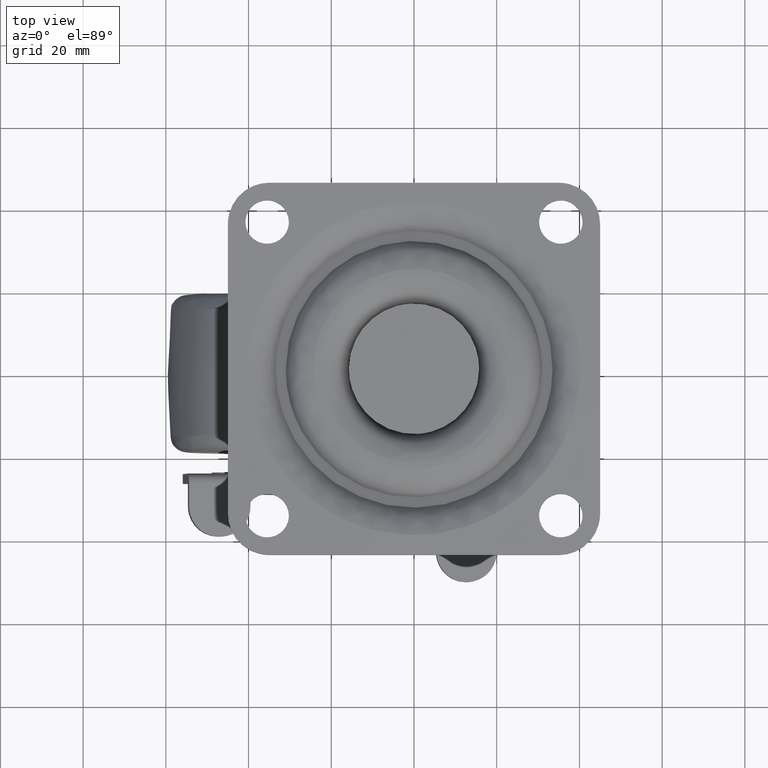
[diagram: clean part render]
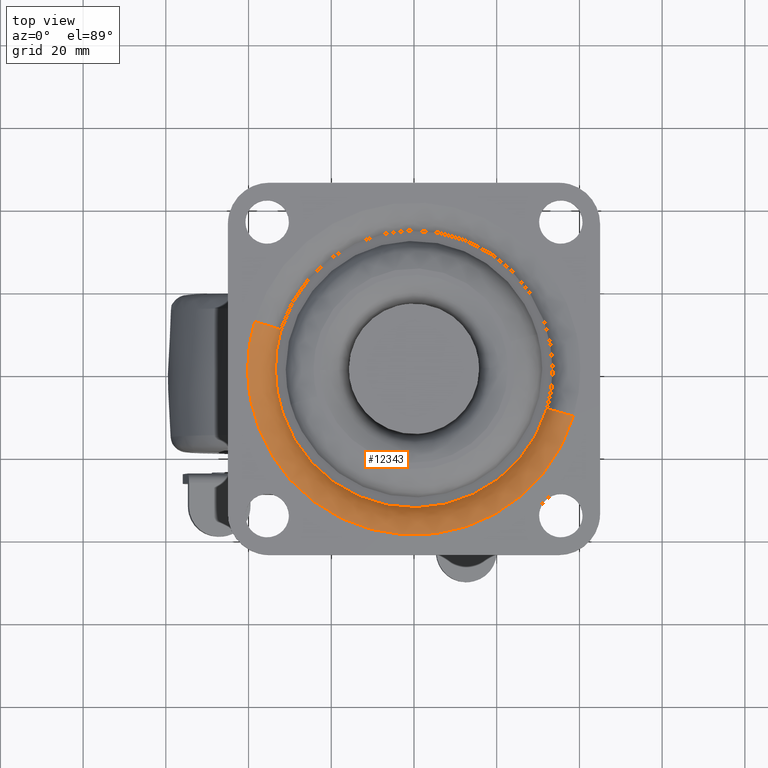
[diagram: same view with one face highlighted and labeled with its STEP entity id]
A machine part, top view. The second image highlights one B-rep face of the part: STEP entity #12343.
In plain terms, the highlighted face is a freeform B-spline surface patch.
Its self-contained STEP definition (entity closure, byte-faithful):
#11880=CARTESIAN_POINT('',(32.110479932456080,-9.548145292971970,-4.999999998579973));
#11881=VERTEX_POINT('',#11880);
#11882=CARTESIAN_POINT('',(-33.500000000000000,0.0,-5.000000000000101));
#11883=VERTEX_POINT('',#11882);
#11884=CARTESIAN_POINT('',(32.110479932456080,-9.548145292971970,-4.999999998579973));
#11885=CARTESIAN_POINT('',(31.738136267525910,-10.800460602766030,-4.999999998584002));
#11886=CARTESIAN_POINT('',(30.931519906835138,-13.027034921487269,-4.999999998594229));
#11887=CARTESIAN_POINT('',(29.049296237325159,-16.890546129142699,-4.999999998622218));
#11888=CARTESIAN_POINT('',(26.558639208610710,-20.633775356358932,-4.999999998663463));
#11889=CARTESIAN_POINT('',(23.025677028032590,-24.500537479490738,-4.999999998726418));
#11890=CARTESIAN_POINT('',(19.297196201058998,-27.533263028221491,-4.999999998796050));
#11891=CARTESIAN_POINT('',(15.489084467044441,-29.791032142913888,-4.999999998869815));
#11892=CARTESIAN_POINT('',(12.187463765312440,-31.258279482545721,-4.999999998935303));
#11893=CARTESIAN_POINT('',(9.176110124942019,-32.267878534932379,-4.999999998996048));
#11894=CARTESIAN_POINT('',(6.084401681359591,-32.996862499756539,-4.999999999059231));
#11895=CARTESIAN_POINT('',(2.627360893692044,-33.463111143424769,-4.999999999131167));
#11896=CARTESIAN_POINT('',(-1.110654880429590,-33.558161957603431,-4.999999999210047));
#11897=CARTESIAN_POINT('',(-4.648015448260884,-33.233253126538443,-4.999999999286053));
#11898=CARTESIAN_POINT('',(-8.009956655582371,-32.580160099555698,-4.999999999359324));
#11899=CARTESIAN_POINT('',(-11.476063063652390,-31.558753965133679,-4.999999999435936));
#11900=CARTESIAN_POINT('',(-15.313553452313039,-29.907452704330851,-4.999999999522373));
#11901=CARTESIAN_POINT('',(-18.896570850744720,-27.759206678929988,-4.999999999604943));
#11902=CARTESIAN_POINT('',(-22.391430595874350,-25.047632712233920,-4.999999999687385));
#11903=CARTESIAN_POINT('',(-25.814699615576650,-21.587330196626471,-4.999999999770615));
#11904=CARTESIAN_POINT('',(-29.024260168279071,-17.049985818575870,-4.999999999852643));
#11905=CARTESIAN_POINT('',(-31.284988578151040,-12.318006424858590,-4.999999999915155));
#11906=CARTESIAN_POINT('',(-32.438292429169337,-8.563592994347397,-4.999999999951185));
#11907=CARTESIAN_POINT('',(-33.266373886684363,-4.603754995420224,-4.999999999980947));
#11908=CARTESIAN_POINT('',(-33.500210266292882,-1.990854671788814,-4.999999999993965));
#11909=CARTESIAN_POINT('',(-33.500000000000000,0.0,-5.000000000000101));
#11910=B_SPLINE_CURVE_WITH_KNOTS('',3,(#11884,#11885,#11886,#11887,#11888,#11889,#11890,#11891,#11892,#11893,#11894,#11895,#11896,#11897,#11898,#11899,#11900,#11901,#11902,#11903,#11904,#11905,#11906,#11907,#11908,#11909),.UNSPECIFIED.,.F.,.U.,(4,1,1,1,1,1,1,1,1,1,1,1,1,1,1,1,1,1,1,1,1,1,1,4),(0.000000077171023,3.919491631097330,7.092419505507948,12.878339353669791,17.357780441215379,22.770438839011330,27.249847315327560,30.609424321378778,33.595727570752238,36.768671557499253,40.128219690512452,44.047612740551997,47.967180990772441,50.766766895164260,54.313022620331452,58.792434442157877,63.271873865488260,66.818104058857131,72.044106738784237,77.830056500636317,83.429317893992859,87.722149698707526,89.588577826166755,95.561088930692605),.UNSPECIFIED.);
#11911=EDGE_CURVE('',#11881,#11883,#11910,.T.);
#11928=CARTESIAN_POINT('',(-32.110479932456080,9.548145292971970,-4.999999998579973));
#11929=VERTEX_POINT('',#11928);
#11959=CARTESIAN_POINT('',(-33.500000000000000,0.0,-5.000000000000101));
#11960=CARTESIAN_POINT('',(-33.500000000202917,4.875179508605094,-4.999999999290038));
#11961=CARTESIAN_POINT('',(-32.110479932456080,9.548145292971970,-4.999999998579973));
#11969=(BOUNDED_CURVE()B_SPLINE_CURVE(2,(#11959,#11960,#11961),.UNSPECIFIED.,.F.,.U.)B_SPLINE_CURVE_WITH_KNOTS((3,3),(0.0,0.048526662065026),.UNSPECIFIED.)CURVE()GEOMETRIC_REPRESENTATION_ITEM()RATIONAL_B_SPLINE_CURVE((1.0,0.943147478998007,0.908365862589683))REPRESENTATION_ITEM(''));
#11970=EDGE_CURVE('',#11883,#11929,#11969,.T.);
#12241=CARTESIAN_POINT('',(32.008660816773030,-9.517869080473131,-5.398889023866007));
#12242=CARTESIAN_POINT('',(22.490791736299929,-41.526529897246164,-5.398889023866007));
#12243=CARTESIAN_POINT('',(-9.517869080473123,-32.008660816773030,-5.398889023866007));
#12244=CARTESIAN_POINT('',(-41.526529897246164,-22.490791736299929,-5.398889023866007));
#12245=CARTESIAN_POINT('',(-32.008660816773030,9.517869080473121,-5.398889023866007));
#12246=CARTESIAN_POINT('',(33.300328113546435,-9.901950135803498,0.336418578151829));
#12247=CARTESIAN_POINT('',(23.398377977742946,-43.202278249349945,0.336418578151829));
#12248=CARTESIAN_POINT('',(-9.901950135803489,-33.300328113546449,0.336418578151829));
#12249=CARTESIAN_POINT('',(-43.202278249349945,-23.398377977742946,0.336418578151829));
#12250=CARTESIAN_POINT('',(-33.300328113546449,9.901950135803485,0.336418578151829));
#12251=CARTESIAN_POINT('',(38.937552083881613,-11.578195200665421,-0.012270887111675));
#12252=CARTESIAN_POINT('',(27.359356883216208,-50.515747284547047,-0.012270887111675));
#12253=CARTESIAN_POINT('',(-11.578195200665409,-38.937552083881620,-0.012270887111675));
#12254=CARTESIAN_POINT('',(-50.515747284547047,-27.359356883216208,-0.012270887111675));
#12255=CARTESIAN_POINT('',(-38.937552083881620,11.578195200665409,-0.012270887111675));
#12263=(BOUNDED_SURFACE()B_SPLINE_SURFACE(2,2,((#12241,#12246,#12251),(#12242,#12247,#12252),(#12243,#12248,#12253),(#12244,#12249,#12254),(#12245,#12250,#12255)),.UNSPECIFIED.,.F.,.F.,.U.)B_SPLINE_SURFACE_WITH_KNOTS((3,2,3),(3,3),(0.0,67.305562976451682,134.611125952903390),(0.0,10.214781449965050),.UNSPECIFIED.)GEOMETRIC_REPRESENTATION_ITEM()RATIONAL_B_SPLINE_SURFACE(((0.919660819706873,0.702132311329617,0.915777174252987),(0.650298402006308,0.496482518631356,0.647552249970142),(0.919660819706873,0.702132311329617,0.915777174252987),(0.650298402006308,0.496482518631356,0.647552249970142),(0.919660819706873,0.702132311329617,0.915777174252987)))REPRESENTATION_ITEM('')SURFACE());
#12264=ORIENTED_EDGE('',*,*,#11911,.T.);
#12265=ORIENTED_EDGE('',*,*,#11970,.T.);
#12266=CARTESIAN_POINT('',(-38.540439564951292,11.460112629843660,-1.113611E-015));
#12267=VERTEX_POINT('',#12266);
#12268=CARTESIAN_POINT('',(-32.110479932456087,9.548145292971970,-4.999999998579973));
#12269=CARTESIAN_POINT('',(-33.539359851568285,9.973026923653293,-1.196528E-009));
#12270=CARTESIAN_POINT('',(-38.540439564951292,11.460112629843662,-1.113611E-015));
#12278=(BOUNDED_CURVE()B_SPLINE_CURVE(2,(#12268,#12269,#12270),.UNSPECIFIED.,.F.,.U.)B_SPLINE_CURVE_WITH_KNOTS((3,3),(-1.691436687617162,-0.322129036770251),.UNSPECIFIED.)CURVE()GEOMETRIC_REPRESENTATION_ITEM()RATIONAL_B_SPLINE_CURVE((0.900792725204854,0.720824041698060,0.897261808198942))REPRESENTATION_ITEM(''));
#12279=EDGE_CURVE('',#11929,#12267,#12278,.T.);
#12280=ORIENTED_EDGE('',*,*,#12279,.T.);
#12281=CARTESIAN_POINT('',(-40.208203932499401,0.0,0.0));
#12282=VERTEX_POINT('',#12281);
#12283=CARTESIAN_POINT('',(-40.208203932499401,0.0,0.0));
#12284=CARTESIAN_POINT('',(-40.208203931730026,5.851409309881770,-5.568056E-016));
#12285=CARTESIAN_POINT('',(-38.540439564951278,11.460112629843657,-1.113611E-015));
#12293=(BOUNDED_CURVE()B_SPLINE_CURVE(2,(#12283,#12284,#12285),.UNSPECIFIED.,.F.,.U.)B_SPLINE_CURVE_WITH_KNOTS((3,3),(0.0,0.048526662065398),.UNSPECIFIED.)CURVE()GEOMETRIC_REPRESENTATION_ITEM()RATIONAL_B_SPLINE_CURVE((1.0,0.943147478997572,0.908365862589150))REPRESENTATION_ITEM(''));
#12294=EDGE_CURVE('',#12282,#12267,#12293,.T.);
#12295=ORIENTED_EDGE('',*,*,#12294,.F.);
#12296=CARTESIAN_POINT('',(38.540439564951299,-11.460112629843660,-1.113611E-015));
#12297=VERTEX_POINT('',#12296);
#12298=CARTESIAN_POINT('',(38.540439564951299,-11.460112629843660,-1.113611E-015));
#12299=CARTESIAN_POINT('',(37.795821765132509,-13.965342330398570,-1.108348E-015));
#12300=CARTESIAN_POINT('',(36.268088796374869,-17.717719020729088,-1.094754E-015));
#12301=CARTESIAN_POINT('',(33.475686237040442,-22.408159612348609,-1.065537E-015));
#12302=CARTESIAN_POINT('',(30.562148134557368,-26.298647580398530,-1.033031E-015));
#12303=CARTESIAN_POINT('',(27.222615185059059,-29.736078502935911,-9.937124E-016));
#12304=CARTESIAN_POINT('',(23.193328854095508,-32.957725252187927,-9.444071E-016));
#12305=CARTESIAN_POINT('',(18.620848232331230,-35.808635493543171,-8.868325E-016));
#12306=CARTESIAN_POINT('',(13.047188248337870,-38.211680929306013,-8.144909E-016));
#12307=CARTESIAN_POINT('',(7.603063371804116,-39.591631584371193,-7.418813E-016));
#12308=CARTESIAN_POINT('',(3.002549657343119,-40.159884822911181,-6.793183E-016));
#12309=CARTESIAN_POINT('',(-0.659272947269974,-40.252946300360541,-6.287967E-016));
#12310=CARTESIAN_POINT('',(-5.060105832568339,-39.984562546823739,-5.673129E-016));
#12311=CARTESIAN_POINT('',(-9.409390183143508,-39.202337641466052,-5.055073E-016));
#12312=CARTESIAN_POINT('',(-14.332143039577920,-37.661692490658623,-4.342319E-016));
#12313=CARTESIAN_POINT('',(-18.163121735747350,-35.962306849017551,-3.777556E-016));
#12314=CARTESIAN_POINT('',(-21.976221599427159,-33.747760293656782,-3.204886E-016));
#12315=CARTESIAN_POINT('',(-25.133110061192831,-31.476569620860101,-2.721948E-016));
#12316=CARTESIAN_POINT('',(-28.597034792919320,-28.397051067213820,-2.180201E-016));
#12317=CARTESIAN_POINT('',(-31.582292405058489,-25.041584441097040,-1.699178E-016));
#12318=CARTESIAN_POINT('',(-34.056746521906462,-21.480416663085649,-1.284747E-016));
#12319=CARTESIAN_POINT('',(-36.303758250302991,-17.513613881714470,-8.936377E-017));
#12320=CARTESIAN_POINT('',(-37.977682542489248,-13.504917534335179,-5.810454E-017));
#12321=CARTESIAN_POINT('',(-39.300448521802878,-8.830522793075060,-3.036660E-017));
#12322=CARTESIAN_POINT('',(-40.033289125722291,-4.629671143317897,-1.175230E-017));
#12323=CARTESIAN_POINT('',(-40.208234757607663,-1.493441700746538,-3.009271E-018));
#12324=CARTESIAN_POINT('',(-40.208203932499401,0.0,0.0));
#12325=B_SPLINE_CURVE_WITH_KNOTS('',3,(#12298,#12299,#12300,#12301,#12302,#12303,#12304,#12305,#12306,#12307,#12308,#12309,#12310,#12311,#12312,#12313,#12314,#12315,#12316,#12317,#12318,#12319,#12320,#12321,#12322,#12323,#12324),.UNSPECIFIED.,.F.,.U.,(4,1,1,1,1,1,1,1,1,1,1,1,1,1,1,1,1,1,1,1,1,1,1,1,4),(0.000000025216252,7.840573062430906,12.096918016360140,16.353234764167890,22.401704575651561,26.434010814585751,31.810430364049271,38.530954436930699,44.579413033762847,48.611757353039863,52.419900248934240,55.556149581855742,61.828692757039263,65.636945986846740,71.013366380022376,74.373628016034203,78.853979624156736,82.662277535663520,88.262707158904263,92.295016460231864,95.655295295375382,101.927777206021700,105.288000604014600,110.216379881113990,114.696709005320500),.UNSPECIFIED.);
#12326=EDGE_CURVE('',#12297,#12282,#12325,.T.);
#12327=ORIENTED_EDGE('',*,*,#12326,.F.);
#12328=CARTESIAN_POINT('',(32.110479932456080,-9.548145292971972,-4.999999998579974));
#12329=CARTESIAN_POINT('',(33.539359851568278,-9.973026923653295,-1.196529E-009));
#12330=CARTESIAN_POINT('',(38.540439564951299,-11.460112629843662,-1.113611E-015));
#12338=(BOUNDED_CURVE()B_SPLINE_CURVE(2,(#12328,#12329,#12330),.UNSPECIFIED.,.F.,.U.)B_SPLINE_CURVE_WITH_KNOTS((3,3),(-1.691436687617162,-0.322129036770251),.UNSPECIFIED.)CURVE()GEOMETRIC_REPRESENTATION_ITEM()RATIONAL_B_SPLINE_CURVE((0.900792725204854,0.720824041698060,0.897261808198942))REPRESENTATION_ITEM(''));
#12339=EDGE_CURVE('',#11881,#12297,#12338,.T.);
#12340=ORIENTED_EDGE('',*,*,#12339,.F.);
#12341=EDGE_LOOP('',(#12264,#12265,#12280,#12295,#12327,#12340));
#12342=FACE_OUTER_BOUND('',#12341,.T.);
#12343=ADVANCED_FACE('',(#12342),#12263,.T.);